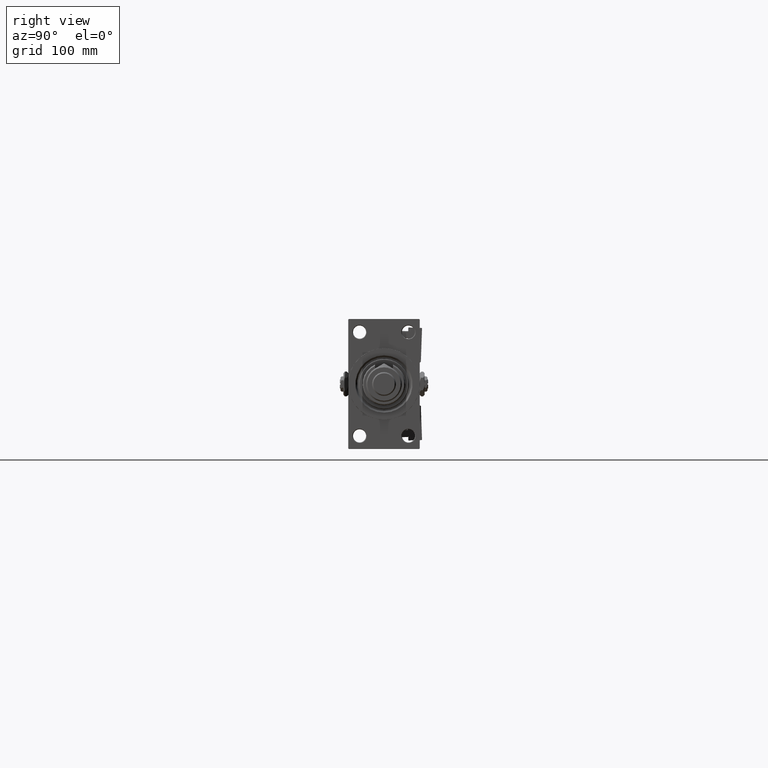
[diagram: clean part render]
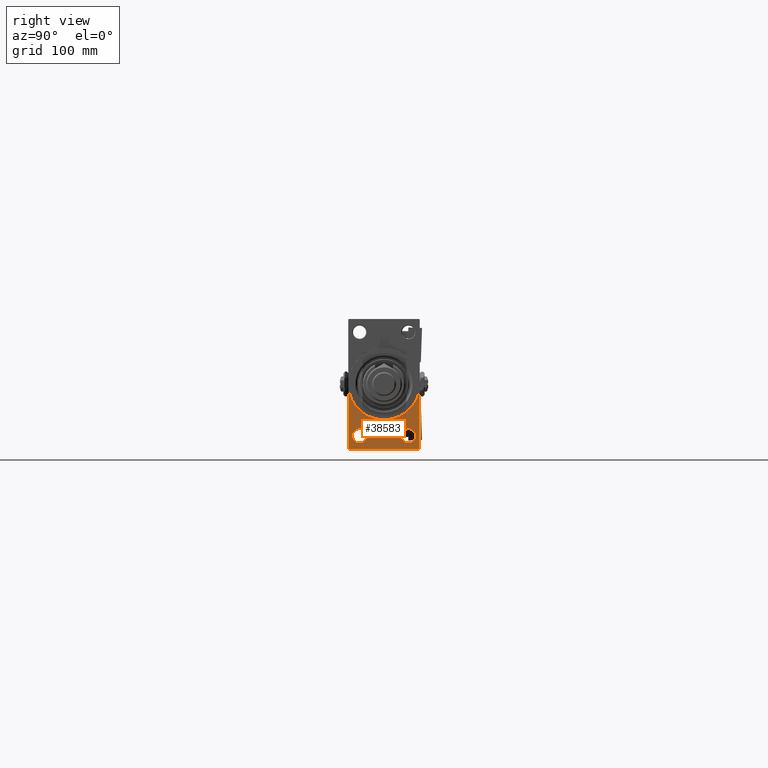
[diagram: same view with one face highlighted and labeled with its STEP entity id]
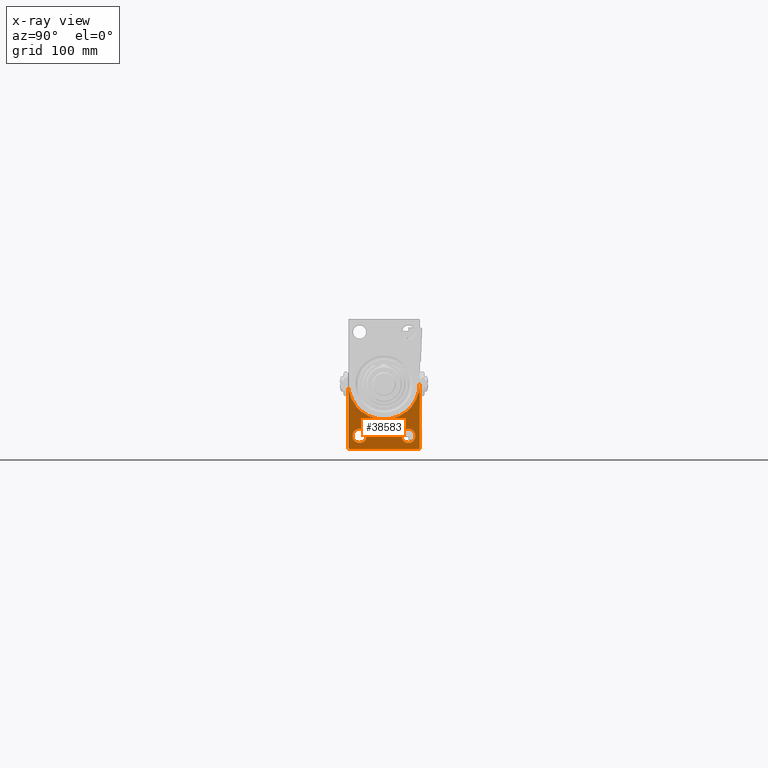
[diagram: x-ray of the same camera — body ghosted, the highlighted face saturated]
A machine part, right view. The second image highlights one B-rep face of the part: STEP entity #38583.
The next image is the same camera in x-ray: the body ghosted, the highlighted face saturated — about 0% of this face is hidden behind the body in this view.
In plain terms, the highlighted planar face has unit normal (-1, 0, 0).
Its self-contained STEP definition (entity closure, byte-faithful):
#448 = CARTESIAN_POINT ( 'NONE',  ( 468.0000000000000000, 20.50000000000000000, -43.50000000000000000 ) ) ;
#1127 = DIRECTION ( 'NONE',  ( 0.000000000000000000, 0.000000000000000000, -1.000000000000000000 ) ) ;
#2193 = AXIS2_PLACEMENT_3D ( 'NONE', #30651, #51730, #35310 ) ;
#2383 = CIRCLE ( 'NONE', #33804, 30.00000000000000000 ) ;
#2813 = DIRECTION ( 'NONE',  ( -0.000000000000000000, 0.7071067811865474617, 0.7071067811865474617 ) ) ;
#4427 = VERTEX_POINT ( 'NONE', #18286 ) ;
#5728 = EDGE_CURVE ( 'NONE', #47041, #30480, #42124, .T. ) ;
#5875 = ORIENTED_EDGE ( 'NONE', *, *, #22082, .T. ) ;
#7624 = CARTESIAN_POINT ( 'NONE',  ( 468.0000000000000000, -30.00000000000000000, 54.50000000000000000 ) ) ;
#7885 = CARTESIAN_POINT ( 'NONE',  ( 468.0000000000000000, -20.50000000000000000, -37.50000000000004974 ) ) ;
#8029 = ORIENTED_EDGE ( 'NONE', *, *, #31105, .T. ) ;
#8033 = ORIENTED_EDGE ( 'NONE', *, *, #45677, .T. ) ;
#8462 = CARTESIAN_POINT ( 'NONE',  ( 468.0000000000000000, -30.00000000000000000, -53.99999999999998579 ) ) ;
#8524 = CARTESIAN_POINT ( 'NONE',  ( 468.0000000000000000, 29.99999999999999645, -53.99999999999993605 ) ) ;
#9316 = ORIENTED_EDGE ( 'NONE', *, *, #5728, .F. ) ;
#9920 = VECTOR ( 'NONE', #52733, 1000.000000000000000 ) ;
#10101 = EDGE_CURVE ( 'NONE', #35804, #4427, #53184, .T. ) ;
#10288 = EDGE_LOOP ( 'NONE', ( #8029, #23103 ) ) ;
#10812 = EDGE_CURVE ( 'NONE', #35220, #47041, #15668, .T. ) ;
#10954 = FACE_BOUND ( 'NONE', #44866, .T. ) ;
#12234 = CARTESIAN_POINT ( 'NONE',  ( 468.0000000000000000, -29.50000000000005684, -54.50000000000000000 ) ) ;
#12243 = LINE ( 'NONE', #7624, #9920 ) ;
#12416 = CARTESIAN_POINT ( 'NONE',  ( 468.0000000000000000, 20.50000000000000000, -43.50000000000000000 ) ) ;
#12438 = VERTEX_POINT ( 'NONE', #12234 ) ;
#13052 = AXIS2_PLACEMENT_3D ( 'NONE', #31082, #26982, #22897 ) ;
#13348 = CIRCLE ( 'NONE', #43068, 5.999999999999950262 ) ;
#13381 = DIRECTION ( 'NONE',  ( 0.000000000000000000, 0.000000000000000000, -1.000000000000000000 ) ) ;
#13686 = VERTEX_POINT ( 'NONE', #47766 ) ;
#14571 = CARTESIAN_POINT ( 'NONE',  ( 468.0000000000000000, 29.99999999999999645, -53.99999999999993605 ) ) ;
#15606 = AXIS2_PLACEMENT_3D ( 'NONE', #12416, #33464, #24736 ) ;
#15668 = CIRCLE ( 'NONE', #13052, 30.00000000000000000 ) ;
#16853 = DIRECTION ( 'NONE',  ( 0.000000000000000000, -1.000000000000000000, -1.156482317317871478E-16 ) ) ;
#17063 = VECTOR ( 'NONE', #53879, 1000.000000000000000 ) ;
#17901 = DIRECTION ( 'NONE',  ( -1.000000000000000000, 0.000000000000000000, -0.000000000000000000 ) ) ;
#18112 = DIRECTION ( 'NONE',  ( -1.000000000000000000, 0.000000000000000000, -0.000000000000000000 ) ) ;
#18286 = CARTESIAN_POINT ( 'NONE',  ( 468.0000000000000000, -20.50000000000000000, -49.49999999999995026 ) ) ;
#20878 = AXIS2_PLACEMENT_3D ( 'NONE', #38089, #18112, #21677 ) ;
#21337 = CARTESIAN_POINT ( 'NONE',  ( 468.0000000000000000, 29.99999999999999645, 54.49999999999999289 ) ) ;
#21677 = DIRECTION ( 'NONE',  ( 0.000000000000000000, 0.000000000000000000, 1.000000000000000000 ) ) ;
#22082 = EDGE_CURVE ( 'NONE', #44124, #30927, #12243, .T. ) ;
#22897 = DIRECTION ( 'NONE',  ( 0.000000000000000000, 0.000000000000000000, -1.000000000000000000 ) ) ;
#23103 = ORIENTED_EDGE ( 'NONE', *, *, #10101, .T. ) ;
#23520 = CARTESIAN_POINT ( 'NONE',  ( 468.0000000000000000, 30.00000000000000000, 0.000000000000000000 ) ) ;
#24525 = CARTESIAN_POINT ( 'NONE',  ( 468.0000000000000000, 29.99999999999999645, -54.49999999999999289 ) ) ;
#24736 = DIRECTION ( 'NONE',  ( 0.000000000000000000, 0.000000000000000000, 1.000000000000000000 ) ) ;
#24803 = DIRECTION ( 'NONE',  ( -1.000000000000000000, 0.000000000000000000, -0.000000000000000000 ) ) ;
#26982 = DIRECTION ( 'NONE',  ( 1.000000000000000000, 0.000000000000000000, 0.000000000000000000 ) ) ;
#27162 = ORIENTED_EDGE ( 'NONE', *, *, #46691, .T. ) ;
#27283 = EDGE_CURVE ( 'NONE', #28745, #12438, #41200, .T. ) ;
#28745 = VERTEX_POINT ( 'NONE', #44107 ) ;
#28887 = DIRECTION ( 'NONE',  ( 0.000000000000000000, 0.000000000000000000, 1.000000000000000000 ) ) ;
#29208 = CARTESIAN_POINT ( 'NONE',  ( 468.0000000000000000, -30.00000000000000000, 0.000000000000000000 ) ) ;
#29361 = ORIENTED_EDGE ( 'NONE', *, *, #40841, .T. ) ;
#29405 = DIRECTION ( 'NONE',  ( 0.000000000000000000, 0.000000000000000000, 1.000000000000000000 ) ) ;
#30480 = VERTEX_POINT ( 'NONE', #8524 ) ;
#30651 = CARTESIAN_POINT ( 'NONE',  ( 468.0000000000000000, 0.000000000000000000, 0.000000000000000000 ) ) ;
#30668 = ORIENTED_EDGE ( 'NONE', *, *, #27283, .F. ) ;
#30927 = VERTEX_POINT ( 'NONE', #8462 ) ;
#31082 = CARTESIAN_POINT ( 'NONE',  ( 468.0000000000000000, 0.000000000000000000, 0.000000000000000000 ) ) ;
#31105 = EDGE_CURVE ( 'NONE', #4427, #35804, #13348, .T. ) ;
#31180 = CARTESIAN_POINT ( 'NONE',  ( 468.0000000000000000, 20.50000000000000000, -49.49999999999995026 ) ) ;
#31190 = FACE_BOUND ( 'NONE', #10288, .T. ) ;
#31956 = CIRCLE ( 'NONE', #45127, 5.999999999999950262 ) ;
#32822 = LINE ( 'NONE', #48977, #17063 ) ;
#32888 = CARTESIAN_POINT ( 'NONE',  ( 468.0000000000000000, 3.673940397442059178E-15, -30.00000000000000000 ) ) ;
#33260 = CARTESIAN_POINT ( 'NONE',  ( 468.0000000000000000, -20.50000000000000000, -43.50000000000000000 ) ) ;
#33307 = VECTOR ( 'NONE', #16853, 1000.000000000000000 ) ;
#33464 = DIRECTION ( 'NONE',  ( -1.000000000000000000, 0.000000000000000000, -0.000000000000000000 ) ) ;
#33792 = VECTOR ( 'NONE', #13381, 1000.000000000000000 ) ;
#33804 = AXIS2_PLACEMENT_3D ( 'NONE', #38570, #34468, #1127 ) ;
#34468 = DIRECTION ( 'NONE',  ( 1.000000000000000000, 0.000000000000000000, 0.000000000000000000 ) ) ;
#35220 = VERTEX_POINT ( 'NONE', #32888 ) ;
#35310 = DIRECTION ( 'NONE',  ( -0.000000000000000000, 0.000000000000000000, 1.000000000000000000 ) ) ;
#35508 = EDGE_CURVE ( 'NONE', #30927, #12438, #32822, .T. ) ;
#35804 = VERTEX_POINT ( 'NONE', #7885 ) ;
#37588 = ORIENTED_EDGE ( 'NONE', *, *, #42378, .F. ) ;
#37717 = VERTEX_POINT ( 'NONE', #31180 ) ;
#38089 = CARTESIAN_POINT ( 'NONE',  ( 468.0000000000000000, -20.50000000000000000, -43.50000000000000000 ) ) ;
#38570 = CARTESIAN_POINT ( 'NONE',  ( 468.0000000000000000, 0.000000000000000000, 0.000000000000000000 ) ) ;
#38583 = ADVANCED_FACE ( 'NONE', ( #31190, #10954, #43790 ), #52256, .F. ) ;
#40841 = EDGE_CURVE ( 'NONE', #13686, #37717, #31956, .T. ) ;
#40985 = VECTOR ( 'NONE', #2813, 1000.000000000000114 ) ;
#41200 = LINE ( 'NONE', #24525, #33307 ) ;
#42124 = LINE ( 'NONE', #21337, #33792 ) ;
#42378 = EDGE_CURVE ( 'NONE', #44124, #35220, #2383, .T. ) ;
#42697 = CIRCLE ( 'NONE', #15606, 5.999999999999950262 ) ;
#43068 = AXIS2_PLACEMENT_3D ( 'NONE', #33260, #24803, #28887 ) ;
#43790 = FACE_OUTER_BOUND ( 'NONE', #44175, .T. ) ;
#44107 = CARTESIAN_POINT ( 'NONE',  ( 468.0000000000000000, 29.49999999999993960, -54.49999999999999289 ) ) ;
#44110 = LINE ( 'NONE', #14571, #40985 ) ;
#44124 = VERTEX_POINT ( 'NONE', #29208 ) ;
#44175 = EDGE_LOOP ( 'NONE', ( #5875, #49330, #30668, #27162, #9316, #45268, #37588 ) ) ;
#44866 = EDGE_LOOP ( 'NONE', ( #8033, #29361 ) ) ;
#45127 = AXIS2_PLACEMENT_3D ( 'NONE', #448, #17901, #29405 ) ;
#45268 = ORIENTED_EDGE ( 'NONE', *, *, #10812, .F. ) ;
#45677 = EDGE_CURVE ( 'NONE', #37717, #13686, #42697, .T. ) ;
#46691 = EDGE_CURVE ( 'NONE', #28745, #30480, #44110, .T. ) ;
#47041 = VERTEX_POINT ( 'NONE', #23520 ) ;
#47766 = CARTESIAN_POINT ( 'NONE',  ( 468.0000000000000000, 20.50000000000000000, -37.50000000000004974 ) ) ;
#48977 = CARTESIAN_POINT ( 'NONE',  ( 468.0000000000000000, -29.50000000000005684, -54.50000000000000000 ) ) ;
#49330 = ORIENTED_EDGE ( 'NONE', *, *, #35508, .T. ) ;
#51730 = DIRECTION ( 'NONE',  ( -1.000000000000000000, 0.000000000000000000, -0.000000000000000000 ) ) ;
#52256 = PLANE ( 'NONE',  #2193 ) ;
#52733 = DIRECTION ( 'NONE',  ( 0.000000000000000000, 0.000000000000000000, -1.000000000000000000 ) ) ;
#53184 = CIRCLE ( 'NONE', #20878, 5.999999999999950262 ) ;
#53879 = DIRECTION ( 'NONE',  ( 0.000000000000000000, 0.7071067811864960584, -0.7071067811865990871 ) ) ;